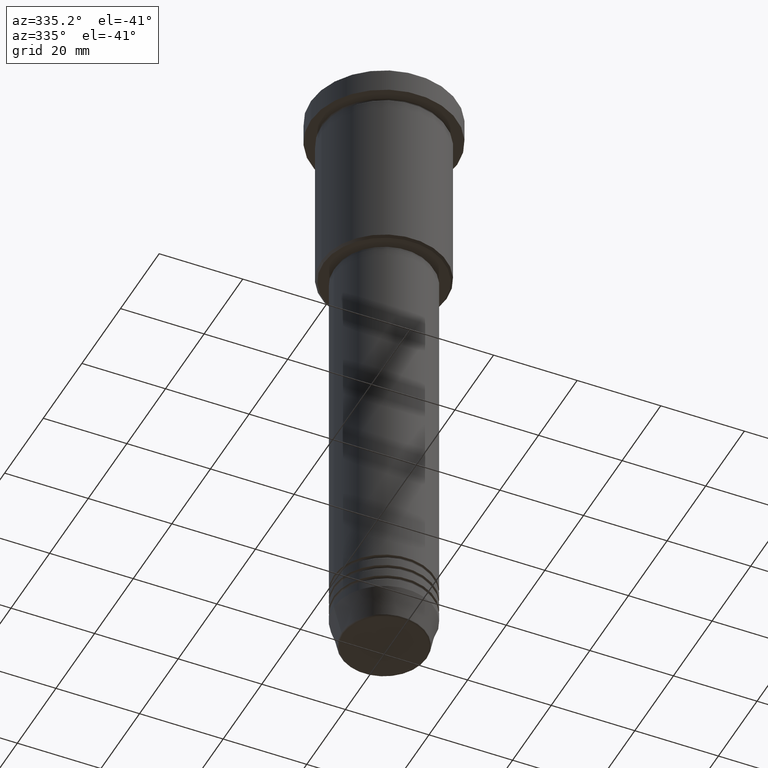
[diagram: clean part render]
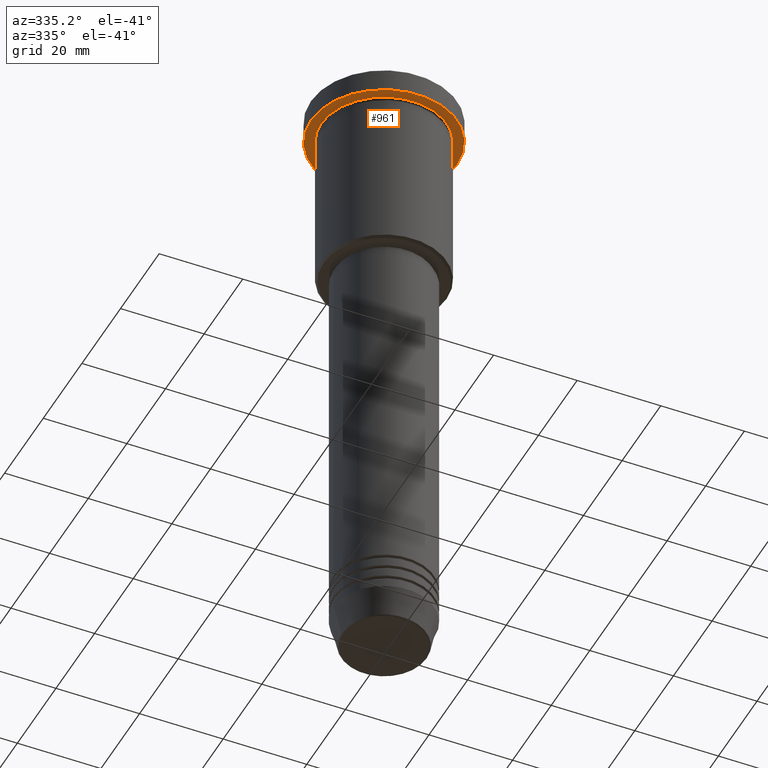
[diagram: same view with one face highlighted and labeled with its STEP entity id]
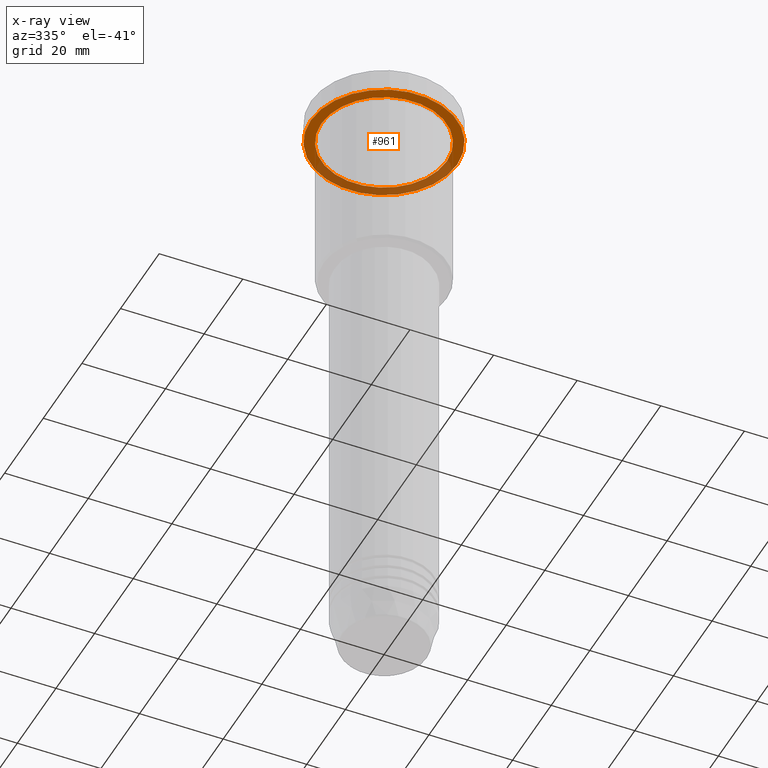
[diagram: x-ray of the same camera — body ghosted, the highlighted face saturated]
A machine part, auxiliary view. The second image highlights one B-rep face of the part: STEP entity #961.
The next image is the same camera in x-ray: the body ghosted, the highlighted face saturated — about 35% of this face is hidden behind the body in this view.
In plain terms, the highlighted planar face has unit normal (0, 0, -1).
Its self-contained STEP definition (entity closure, byte-faithful):
#47 = FACE_OUTER_BOUND ( 'NONE', #633, .T. ) ;
#63 = CARTESIAN_POINT ( 'NONE',  ( -17.50000000000000000, 2.143131898507868248E-15, -5.999999999999995559 ) ) ;
#69 = DIRECTION ( 'NONE',  ( -0.000000000000000000, -0.000000000000000000, 1.000000000000000000 ) ) ;
#78 = DIRECTION ( 'NONE',  ( -0.000000000000000000, -0.000000000000000000, 1.000000000000000000 ) ) ;
#134 = VERTEX_POINT ( 'NONE', #711 ) ;
#136 = CARTESIAN_POINT ( 'NONE',  ( -15.00000000000000000, 0.000000000000000000, -5.999999999999994671 ) ) ;
#151 = DIRECTION ( 'NONE',  ( -1.000000000000000000, 0.000000000000000000, -0.000000000000000000 ) ) ;
#161 = DIRECTION ( 'NONE',  ( 0.000000000000000000, 0.000000000000000000, -1.000000000000000000 ) ) ;
#185 = VERTEX_POINT ( 'NONE', #532 ) ;
#249 = DIRECTION ( 'NONE',  ( -1.000000000000000000, 0.000000000000000000, 0.000000000000000000 ) ) ;
#267 = EDGE_CURVE ( 'NONE', #726, #134, #1115, .T. ) ;
#331 = FACE_BOUND ( 'NONE', #839, .T. ) ;
#350 = CIRCLE ( 'NONE', #385, 15.00000000000000000 ) ;
#366 = AXIS2_PLACEMENT_3D ( 'NONE', #586, #161, #151 ) ;
#385 = AXIS2_PLACEMENT_3D ( 'NONE', #413, #69, #992 ) ;
#397 = CIRCLE ( 'NONE', #514, 15.00000000000000000 ) ;
#413 = CARTESIAN_POINT ( 'NONE',  ( 0.000000000000000000, 0.000000000000000000, -5.999999999999995559 ) ) ;
#425 = DIRECTION ( 'NONE',  ( -0.000000000000000000, -0.000000000000000000, 1.000000000000000000 ) ) ;
#426 = PLANE ( 'NONE',  #366 ) ;
#471 = ORIENTED_EDGE ( 'NONE', *, *, #676, .F. ) ;
#514 = AXIS2_PLACEMENT_3D ( 'NONE', #1064, #78, #249 ) ;
#532 = CARTESIAN_POINT ( 'NONE',  ( 15.00000000000000000, 1.836970198721029589E-15, -5.999999999999994671 ) ) ;
#547 = EDGE_CURVE ( 'NONE', #185, #955, #397, .T. ) ;
#586 = CARTESIAN_POINT ( 'NONE',  ( 0.000000000000000000, 17.50000000000000000, -5.999999999999995559 ) ) ;
#633 = EDGE_LOOP ( 'NONE', ( #471, #655 ) ) ;
#635 = CARTESIAN_POINT ( 'NONE',  ( 0.000000000000000000, 0.000000000000000000, -5.999999999999995559 ) ) ;
#643 = DIRECTION ( 'NONE',  ( 1.000000000000000000, 0.000000000000000000, 0.000000000000000000 ) ) ;
#655 = ORIENTED_EDGE ( 'NONE', *, *, #267, .F. ) ;
#676 = EDGE_CURVE ( 'NONE', #134, #726, #846, .T. ) ;
#711 = CARTESIAN_POINT ( 'NONE',  ( 17.50000000000000000, 0.000000000000000000, -5.999999999999995559 ) ) ;
#726 = VERTEX_POINT ( 'NONE', #63 ) ;
#738 = ORIENTED_EDGE ( 'NONE', *, *, #547, .T. ) ;
#790 = DIRECTION ( 'NONE',  ( 1.000000000000000000, 0.000000000000000000, 0.000000000000000000 ) ) ;
#839 = EDGE_LOOP ( 'NONE', ( #1175, #738 ) ) ;
#846 = CIRCLE ( 'NONE', #1004, 17.50000000000000000 ) ;
#919 = DIRECTION ( 'NONE',  ( -0.000000000000000000, -0.000000000000000000, 1.000000000000000000 ) ) ;
#955 = VERTEX_POINT ( 'NONE', #136 ) ;
#961 = ADVANCED_FACE ( 'NONE', ( #331, #47 ), #426, .T. ) ;
#982 = CARTESIAN_POINT ( 'NONE',  ( 0.000000000000000000, 0.000000000000000000, -5.999999999999995559 ) ) ;
#992 = DIRECTION ( 'NONE',  ( -1.000000000000000000, 0.000000000000000000, 0.000000000000000000 ) ) ;
#1004 = AXIS2_PLACEMENT_3D ( 'NONE', #635, #919, #643 ) ;
#1064 = CARTESIAN_POINT ( 'NONE',  ( 0.000000000000000000, 0.000000000000000000, -5.999999999999995559 ) ) ;
#1113 = AXIS2_PLACEMENT_3D ( 'NONE', #982, #425, #790 ) ;
#1115 = CIRCLE ( 'NONE', #1113, 17.50000000000000000 ) ;
#1130 = EDGE_CURVE ( 'NONE', #955, #185, #350, .T. ) ;
#1175 = ORIENTED_EDGE ( 'NONE', *, *, #1130, .T. ) ;